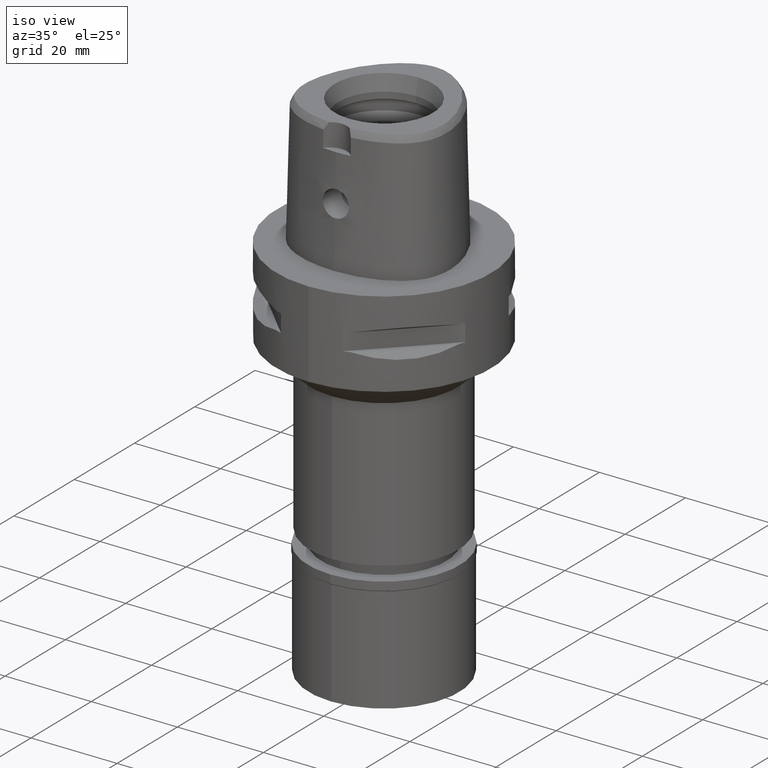
[diagram: clean part render]
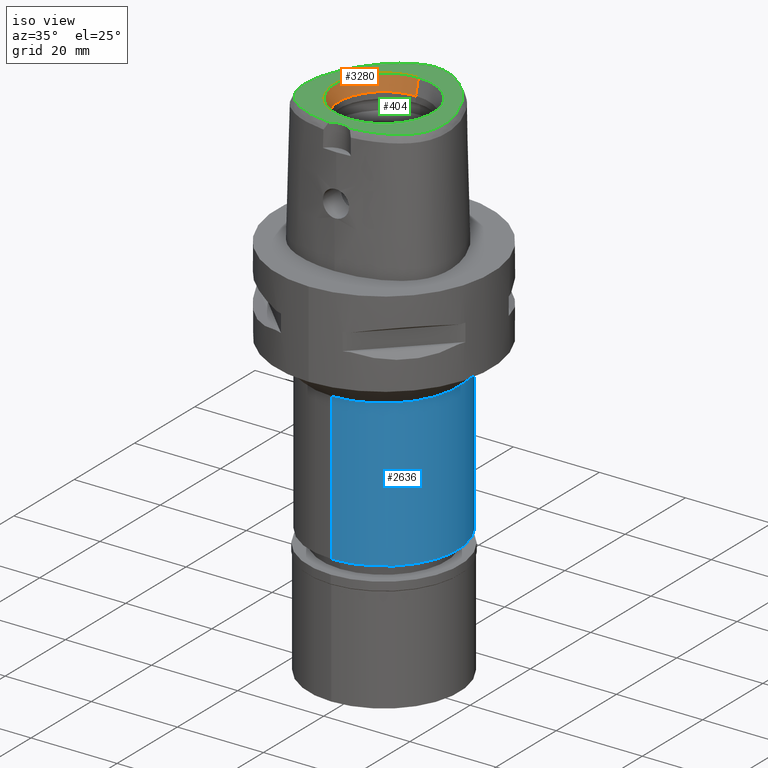
[diagram: same view with three faces highlighted in distinct colors, each labeled with its STEP entity id]
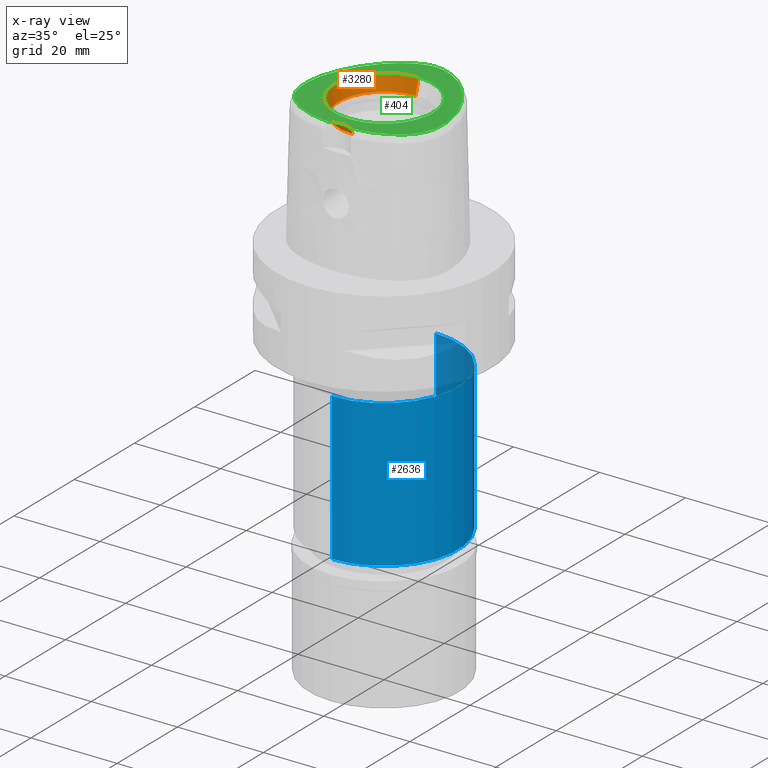
[diagram: x-ray of the same camera — body ghosted, the three highlighted faces saturated]
A machine part, iso view with three faces highlighted in distinct colors.
The next image is the same camera in x-ray (body ghosted, the three faces saturated) — at least one of them is partly hidden behind the body in this view.
Their STEP definitions:

[orange] entity #3280 — the highlighted conical surface has half-angle 15 deg.
#3 = DIRECTION ( 'NONE',  ( 0.0000000000000000000, 0.0000000000000000000, 1.000000000000000000 ) ) ;
#32 = EDGE_CURVE ( 'NONE', #1560, #2302, #457, .T. ) ;
#58 = CARTESIAN_POINT ( 'NONE',  ( 0.0000000000000000000, 10.50000000000000000, 26.50000000000000000 ) ) ;
#322 = CARTESIAN_POINT ( 'NONE',  ( 0.0000000000000000000, 10.50000000000000000, 26.50000000000000000 ) ) ;
#442 = FACE_OUTER_BOUND ( 'NONE', #2288, .T. ) ;
#457 = CIRCLE ( 'NONE', #1867, 10.50000000000000000 ) ;
#515 = EDGE_CURVE ( 'NONE', #3151, #2186, #3237, .T. ) ;
#681 = CARTESIAN_POINT ( 'NONE',  ( 0.0000000000000000000, 1.570609519905999910E-14, 30.00000000000000000 ) ) ;
#767 = ORIENTED_EDGE ( 'NONE', *, *, #3804, .T. ) ;
#1025 = VECTOR ( 'NONE', #3806, 1000.000000000000114 ) ;
#1035 = AXIS2_PLACEMENT_3D ( 'NONE', #1225, #2274, #3046 ) ;
#1143 = AXIS2_PLACEMENT_3D ( 'NONE', #681, #3319, #1464 ) ;
#1225 = CARTESIAN_POINT ( 'NONE',  ( 0.0000000000000000000, 1.570609519905999910E-14, 28.25000000000000000 ) ) ;
#1424 = VECTOR ( 'NONE', #2741, 1000.000000000000114 ) ;
#1464 = DIRECTION ( 'NONE',  ( 0.0000000000000000000, 1.000000000000000000, 0.0000000000000000000 ) ) ;
#1558 = LINE ( 'NONE', #1901, #1025 ) ;
#1560 = VERTEX_POINT ( 'NONE', #322 ) ;
#1579 = ORIENTED_EDGE ( 'NONE', *, *, #32, .F. ) ;
#1625 = LINE ( 'NONE', #58, #1424 ) ;
#1867 = AXIS2_PLACEMENT_3D ( 'NONE', #3330, #3, #4771 ) ;
#1901 = CARTESIAN_POINT ( 'NONE',  ( 0.0000000000000000000, -10.50000000000000000, 26.50000000000000000 ) ) ;
#2186 = VERTEX_POINT ( 'NONE', #4731 ) ;
#2274 = DIRECTION ( 'NONE',  ( 0.0000000000000000000, 0.0000000000000000000, 1.000000000000000000 ) ) ;
#2288 = EDGE_LOOP ( 'NONE', ( #4481, #1579, #767, #4672 ) ) ;
#2298 = EDGE_CURVE ( 'NONE', #2302, #2186, #1558, .T. ) ;
#2302 = VERTEX_POINT ( 'NONE', #3089 ) ;
#2741 = DIRECTION ( 'NONE',  ( 0.0000000000000000000, 0.2588190451023999472, 0.9659258262891006197 ) ) ;
#2998 = CARTESIAN_POINT ( 'NONE',  ( 0.0000000000000000000, 11.43782217350000074, 30.00000000000000000 ) ) ;
#3046 = DIRECTION ( 'NONE',  ( 0.0000000000000000000, 1.000000000000000000, 0.0000000000000000000 ) ) ;
#3089 = CARTESIAN_POINT ( 'NONE',  ( 0.0000000000000000000, -10.50000000000000000, 26.50000000000000000 ) ) ;
#3140 = CONICAL_SURFACE ( 'NONE', #1035, 10.96891108674999948, 0.2617993877991000029 ) ;
#3151 = VERTEX_POINT ( 'NONE', #2998 ) ;
#3237 = CIRCLE ( 'NONE', #1143, 11.43782217350000074 ) ;
#3280 = ADVANCED_FACE ( 'NONE', ( #442 ), #3140, .F. ) ;
#3319 = DIRECTION ( 'NONE',  ( 0.0000000000000000000, 0.0000000000000000000, 1.000000000000000000 ) ) ;
#3330 = CARTESIAN_POINT ( 'NONE',  ( 0.0000000000000000000, 1.570609519905999910E-14, 26.50000000000000000 ) ) ;
#3804 = EDGE_CURVE ( 'NONE', #1560, #3151, #1625, .T. ) ;
#3806 = DIRECTION ( 'NONE',  ( 0.0000000000000000000, -0.2588190451023999472, 0.9659258262891006197 ) ) ;
#4481 = ORIENTED_EDGE ( 'NONE', *, *, #2298, .F. ) ;
#4672 = ORIENTED_EDGE ( 'NONE', *, *, #515, .T. ) ;
#4731 = CARTESIAN_POINT ( 'NONE',  ( 0.0000000000000000000, -11.43782217350000074, 30.00000000000000000 ) ) ;
#4771 = DIRECTION ( 'NONE',  ( 0.0000000000000000000, 1.000000000000000000, 0.0000000000000000000 ) ) ;

[blue] entity #2636 — the highlighted cylindrical surface (partial cylindrical patch) has radius 17.25 mm, axis along (0, 0, -1).
#278 = DIRECTION ( 'NONE',  ( 0.0000000000000000000, 0.0000000000000000000, -1.000000000000000000 ) ) ;
#351 = CARTESIAN_POINT ( 'NONE',  ( 0.0000000000000000000, 1.273020347714000000E-14, -60.19999999999999574 ) ) ;
#366 = CARTESIAN_POINT ( 'NONE',  ( 0.0000000000000000000, 17.25000000000000000, -26.00000000000000000 ) ) ;
#413 = AXIS2_PLACEMENT_3D ( 'NONE', #351, #717, #3304 ) ;
#478 = EDGE_CURVE ( 'NONE', #629, #3655, #4103, .T. ) ;
#482 = VERTEX_POINT ( 'NONE', #2193 ) ;
#556 = LINE ( 'NONE', #4781, #3761 ) ;
#629 = VERTEX_POINT ( 'NONE', #366 ) ;
#703 = DIRECTION ( 'NONE',  ( 0.0000000000000000000, 1.000000000000000000, 0.0000000000000000000 ) ) ;
#717 = DIRECTION ( 'NONE',  ( 0.0000000000000000000, 0.0000000000000000000, 1.000000000000000000 ) ) ;
#725 = DIRECTION ( 'NONE',  ( 0.0000000000000000000, 0.0000000000000000000, -1.000000000000000000 ) ) ;
#880 = VECTOR ( 'NONE', #3751, 1000.000000000000000 ) ;
#1350 = CARTESIAN_POINT ( 'NONE',  ( 0.0000000000000000000, -17.25000000000000000, -60.19999999999999574 ) ) ;
#1399 = ORIENTED_EDGE ( 'NONE', *, *, #3611, .T. ) ;
#1729 = AXIS2_PLACEMENT_3D ( 'NONE', #4017, #278, #1770 ) ;
#1743 = FACE_OUTER_BOUND ( 'NONE', #2228, .T. ) ;
#1770 = DIRECTION ( 'NONE',  ( 0.0000000000000000000, -1.000000000000000000, 0.0000000000000000000 ) ) ;
#1999 = AXIS2_PLACEMENT_3D ( 'NONE', #2478, #2171, #703 ) ;
#2126 = EDGE_CURVE ( 'NONE', #3655, #3982, #556, .T. ) ;
#2171 = DIRECTION ( 'NONE',  ( 0.0000000000000000000, 0.0000000000000000000, -1.000000000000000000 ) ) ;
#2193 = CARTESIAN_POINT ( 'NONE',  ( 0.0000000000000000000, 17.25000000000000000, -60.19999999999999574 ) ) ;
#2228 = EDGE_LOOP ( 'NONE', ( #2866, #2632, #1399, #2962 ) ) ;
#2478 = CARTESIAN_POINT ( 'NONE',  ( 0.0000000000000000000, 0.0000000000000000000, -26.00000000000000000 ) ) ;
#2544 = CYLINDRICAL_SURFACE ( 'NONE', #1729, 17.25000000000000000 ) ;
#2573 = LINE ( 'NONE', #3675, #880 ) ;
#2632 = ORIENTED_EDGE ( 'NONE', *, *, #2126, .T. ) ;
#2636 = ADVANCED_FACE ( 'NONE', ( #1743 ), #2544, .T. ) ;
#2866 = ORIENTED_EDGE ( 'NONE', *, *, #478, .T. ) ;
#2962 = ORIENTED_EDGE ( 'NONE', *, *, #3336, .F. ) ;
#3304 = DIRECTION ( 'NONE',  ( 0.0000000000000000000, -1.000000000000000000, 0.0000000000000000000 ) ) ;
#3336 = EDGE_CURVE ( 'NONE', #629, #482, #2573, .T. ) ;
#3611 = EDGE_CURVE ( 'NONE', #3982, #482, #4470, .T. ) ;
#3655 = VERTEX_POINT ( 'NONE', #4753 ) ;
#3675 = CARTESIAN_POINT ( 'NONE',  ( 0.0000000000000000000, 17.25000000000000000, -26.00000000000000000 ) ) ;
#3751 = DIRECTION ( 'NONE',  ( 0.0000000000000000000, 0.0000000000000000000, -1.000000000000000000 ) ) ;
#3761 = VECTOR ( 'NONE', #725, 1000.000000000000000 ) ;
#3982 = VERTEX_POINT ( 'NONE', #1350 ) ;
#4017 = CARTESIAN_POINT ( 'NONE',  ( 0.0000000000000000000, 1.273020347714000000E-14, 3.950000000000000178 ) ) ;
#4103 = CIRCLE ( 'NONE', #1999, 17.25000000000000000 ) ;
#4470 = CIRCLE ( 'NONE', #413, 17.25000000000000000 ) ;
#4753 = CARTESIAN_POINT ( 'NONE',  ( 0.0000000000000000000, -17.25000000000000000, -26.00000000000000000 ) ) ;
#4781 = CARTESIAN_POINT ( 'NONE',  ( 0.0000000000000000000, -17.25000000000000000, -26.00000000000000000 ) ) ;

[green] entity #404 — the highlighted planar face has unit normal (0, 0, 1).
#66 = ORIENTED_EDGE ( 'NONE', *, *, #926, .F. ) ;
#87 = CARTESIAN_POINT ( 'NONE',  ( -6.301949014348001760E-11, 17.15328888647999861, 30.00000000000000000 ) ) ;
#152 = PLANE ( 'NONE',  #3708 ) ;
#187 = CARTESIAN_POINT ( 'NONE',  ( 16.04058509949058120, -1.654113685488318719, 30.00000000000085620 ) ) ;
#194 = FACE_BOUND ( 'NONE', #349, .T. ) ;
#210 = CARTESIAN_POINT ( 'NONE',  ( 0.1912597614439644211, 17.15328888648271644, 30.00000000000237321 ) ) ;
#230 = CARTESIAN_POINT ( 'NONE',  ( -6.301949014348001760E-11, 17.15328888647999861, 30.00000000000000000 ) ) ;
#255 = CARTESIAN_POINT ( 'NONE',  ( 15.51702143705950121, -7.148634146069219319, 30.00000000000020606 ) ) ;
#293 = CARTESIAN_POINT ( 'NONE',  ( -15.29229544369949778, -7.721097396978246152, 29.99999999999050715 ) ) ;
#304 = CARTESIAN_POINT ( 'NONE',  ( 15.71128456932016348, -6.534031654962926261, 30.00000000000222755 ) ) ;
#315 = ORIENTED_EDGE ( 'NONE', *, *, #1011, .F. ) ;
#316 = CARTESIAN_POINT ( 'NONE',  ( -8.556928701965192730, 13.07433695899091219, 29.99999999999191047 ) ) ;
#328 = CARTESIAN_POINT ( 'NONE',  ( 15.99982784346009801, -5.151471542954434213, 29.99999999999620215 ) ) ;
#343 = CARTESIAN_POINT ( 'NONE',  ( -5.257871200568519754, 15.58649213537267109, 29.99999999999856826 ) ) ;
#349 = EDGE_LOOP ( 'NONE', ( #2790, #1496 ) ) ;
#352 = CARTESIAN_POINT ( 'NONE',  ( 12.04928217776229360, -11.59002493206971529, 30.00000000000117950 ) ) ;
#369 = CARTESIAN_POINT ( 'NONE',  ( -7.776737509123836212, -13.71663015822261222, 30.00000000000126477 ) ) ;
#370 = CIRCLE ( 'NONE', #600, 4.000000000000000888 ) ;
#392 = CARTESIAN_POINT ( 'NONE',  ( -5.437876102061962591, -14.35707869331290354, 30.00000000000051514 ) ) ;
#404 = ADVANCED_FACE ( 'NONE', ( #3173, #194 ), #152, .T. ) ;
#515 = EDGE_CURVE ( 'NONE', #3151, #2186, #3237, .T. ) ;
#533 = CARTESIAN_POINT ( 'NONE',  ( 9.420872132874531957, 12.20574557692828144, 30.00000000000901679 ) ) ;
#600 = AXIS2_PLACEMENT_3D ( 'NONE', #3626, #1779, #3264 ) ;
#657 = CARTESIAN_POINT ( 'NONE',  ( -2.411640998825538951, 16.81591728051153112, 29.99999999999791811 ) ) ;
#658 = EDGE_CURVE ( 'NONE', #2186, #3151, #4333, .T. ) ;
#681 = CARTESIAN_POINT ( 'NONE',  ( 0.0000000000000000000, 1.570609519905999910E-14, 30.00000000000000000 ) ) ;
#683 = CARTESIAN_POINT ( 'NONE',  ( -15.71065119878979921, -6.536303815289553398, 29.99999999999173284 ) ) ;
#705 = CARTESIAN_POINT ( 'NONE',  ( -15.90223487643930511, -0.6162487013686411830, 29.99999999999145217 ) ) ;
#719 = CARTESIAN_POINT ( 'NONE',  ( 4.159771979224938576, -14.59766906204017367, 30.00000000000440181 ) ) ;
#727 = CARTESIAN_POINT ( 'NONE',  ( -2.406542353497000075, -14.80491723099000012, 30.00000000000000000 ) ) ;
#758 = CARTESIAN_POINT ( 'NONE',  ( -15.68979199461784191, 0.4896967076518167761, 29.99999999999021938 ) ) ;
#814 = VERTEX_POINT ( 'NONE', #727 ) ;
#896 = CARTESIAN_POINT ( 'NONE',  ( 6.863227115065288153, 14.51498137220169227, 29.99999999999951328 ) ) ;
#920 = CARTESIAN_POINT ( 'NONE',  ( 2.406543924163999648, -14.80491841401999942, 30.00000000000000000 ) ) ;
#921 = CARTESIAN_POINT ( 'NONE',  ( 15.68929135224404448, 0.4919393172822775218, 30.00000000000160938 ) ) ;
#926 = EDGE_CURVE ( 'NONE', #3443, #814, #370, .T. ) ;
#943 = CARTESIAN_POINT ( 'NONE',  ( 12.68590586676934429, 7.870511070825401134, 30.00000000000665423 ) ) ;
#1011 = EDGE_CURVE ( 'NONE', #814, #2257, #3547, .T. ) ;
#1021 = CARTESIAN_POINT ( 'NONE',  ( -1.160151454488347778, 17.07862209883642635, 29.99999999999358735 ) ) ;
#1036 = CARTESIAN_POINT ( 'NONE',  ( 14.08238499151983625, -9.704590128438637109, 29.99999999999494449 ) ) ;
#1050 = CARTESIAN_POINT ( 'NONE',  ( -12.65209017756237131, -11.12734424253345722, 29.99999999999469225 ) ) ;
#1061 = CARTESIAN_POINT ( 'NONE',  ( 15.29323375805280705, -7.718923543002861543, 29.99999999999899458 ) ) ;
#1078 = CARTESIAN_POINT ( 'NONE',  ( -0.1909045559980151185, 17.15328888648422279, 29.99999999999326761 ) ) ;
#1114 = CARTESIAN_POINT ( 'NONE',  ( 13.66559393374796016, -10.18115111194088840, 30.00000000000289901 ) ) ;
#1128 = CARTESIAN_POINT ( 'NONE',  ( -4.150496093830946087, -14.59917355179870135, 29.99999999999328182 ) ) ;
#1143 = AXIS2_PLACEMENT_3D ( 'NONE', #681, #3319, #1464 ) ;
#1150 = AXIS2_PLACEMENT_3D ( 'NONE', #2505, #2144, #4839 ) ;
#1288 = CARTESIAN_POINT ( 'NONE',  ( 11.92667412982003228, 9.061218325782263605, 29.99999999999640821 ) ) ;
#1320 = DIRECTION ( 'NONE',  ( 0.0000000000000000000, 0.0000000000000000000, 1.000000000000000000 ) ) ;
#1356 = CARTESIAN_POINT ( 'NONE',  ( 6.048015628559986645, 15.09357031580100106, 29.99999999999808864 ) ) ;
#1393 = CARTESIAN_POINT ( 'NONE',  ( -11.92713521269314292, 9.060544494663830051, 29.99999999999166889 ) ) ;
#1414 = CARTESIAN_POINT ( 'NONE',  ( -6.650243356161015917, -14.05992414833286652, 30.00000000000092726 ) ) ;
#1426 = CARTESIAN_POINT ( 'NONE',  ( 14.44767169633491122, -9.224476417585403709, 30.00000000000081712 ) ) ;
#1440 = CARTESIAN_POINT ( 'NONE',  ( -4.498660734198850264, 15.99814720005768365, 29.99999999999441513 ) ) ;
#1464 = DIRECTION ( 'NONE',  ( 0.0000000000000000000, 1.000000000000000000, 0.0000000000000000000 ) ) ;
#1466 = CARTESIAN_POINT ( 'NONE',  ( -15.02099409650710093, 2.867135356160721571, 29.99999999999479527 ) ) ;
#1490 = CARTESIAN_POINT ( 'NONE',  ( -15.99949242929181814, -5.153835065649202463, 29.99999999999747757 ) ) ;
#1496 = ORIENTED_EDGE ( 'NONE', *, *, #515, .F. ) ;
#1654 = CARTESIAN_POINT ( 'NONE',  ( 1.161482229273333555, 17.07843133414590753, 30.00000000000385469 ) ) ;
#1698 = CARTESIAN_POINT ( 'NONE',  ( 3.078265684544093883, 16.60532678263368211, 30.00000000000010658 ) ) ;
#1719 = CARTESIAN_POINT ( 'NONE',  ( 1.774127352511049693, 16.97169788999240936, 29.99999999999882405 ) ) ;
#1779 = DIRECTION ( 'NONE',  ( 0.0000000000000000000, 0.0000000000000000000, 1.000000000000000000 ) ) ;
#1784 = CARTESIAN_POINT ( 'NONE',  ( -3.077178008231669981, 16.60571267458579570, 30.00000000000154543 ) ) ;
#1796 = CARTESIAN_POINT ( 'NONE',  ( 16.11273027396866908, -2.627494158580902184, 30.00000000000405009 ) ) ;
#1807 = CARTESIAN_POINT ( 'NONE',  ( -14.08052509618731740, -9.706873108418973217, 29.99999999999241496 ) ) ;
#1832 = CARTESIAN_POINT ( 'NONE',  ( -10.60021164903102076, -12.49731984708874677, 29.99999999998902211 ) ) ;
#1879 = EDGE_LOOP ( 'NONE', ( #4355, #315, #66 ) ) ;
#2004 = CARTESIAN_POINT ( 'NONE',  ( -13.66338899148893482, -10.18351204679058952, 29.99999999999040057 ) ) ;
#2023 = CARTESIAN_POINT ( 'NONE',  ( 11.11868440496507127, 10.19157821279967635, 29.99999999999838352 ) ) ;
#2107 = CARTESIAN_POINT ( 'NONE',  ( 16.12546998862792691, -3.533461825553398050, 30.00000000000384048 ) ) ;
#2144 = DIRECTION ( 'NONE',  ( 0.0000000000000000000, 0.0000000000000000000, 1.000000000000000000 ) ) ;
#2161 = CARTESIAN_POINT ( 'NONE',  ( 12.65514534657001811, -11.12483370674133631, 30.00000000000831690 ) ) ;
#2173 = CARTESIAN_POINT ( 'NONE',  ( -15.39727819200965442, 1.655076005306153286, 29.99999999999458211 ) ) ;
#2186 = VERTEX_POINT ( 'NONE', #4731 ) ;
#2195 = CARTESIAN_POINT ( 'NONE',  ( -14.44611813752698914, -9.226676124713099725, 29.99999999999290878 ) ) ;
#2221 = CARTESIAN_POINT ( 'NONE',  ( -3.123276563985051268, -14.73562494724608918, 29.99999999999736389 ) ) ;
#2251 = CARTESIAN_POINT ( 'NONE',  ( -13.38439869301438279, 6.635703175840472312, 29.99999999999366196 ) ) ;
#2257 = VERTEX_POINT ( 'NONE', #87 ) ;
#2381 = CARTESIAN_POINT ( 'NONE',  ( 8.557117433366570936, 13.07415149353017192, 30.00000000000586908 ) ) ;
#2405 = CARTESIAN_POINT ( 'NONE',  ( 15.90185233182095637, -0.6139199331564265671, 29.99999999999401012 ) ) ;
#2491 = CARTESIAN_POINT ( 'NONE',  ( 7.783816186093539535, -13.71424622167470275, 30.00000000000410694 ) ) ;
#2505 = CARTESIAN_POINT ( 'NONE',  ( 0.0000000000000000000, 1.570609519905999910E-14, 30.00000000000000000 ) ) ;
#2517 = CARTESIAN_POINT ( 'NONE',  ( 2.538962679605490713, -14.79292722369703483, 30.00000000000314415 ) ) ;
#2559 = CARTESIAN_POINT ( 'NONE',  ( -12.04571048959994428, -11.59259605426995066, 29.99999999999912959 ) ) ;
#2583 = CARTESIAN_POINT ( 'NONE',  ( -16.04083576398203093, -1.656498942828826593, 29.99999999999334577 ) ) ;
#2609 = CARTESIAN_POINT ( 'NONE',  ( -16.12543283908805947, -3.535877041748210825, 29.99999999999578648 ) ) ;
#2629 = EDGE_CURVE ( 'NONE', #2257, #3443, #4578, .T. ) ;
#2772 = CARTESIAN_POINT ( 'NONE',  ( 14.01089202938320177, 5.377385268371323690, 29.99999999999874944 ) ) ;
#2790 = ORIENTED_EDGE ( 'NONE', *, *, #658, .F. ) ;
#2798 = CARTESIAN_POINT ( 'NONE',  ( 2.412811123805030711, 16.81558681049622095, 30.00000000001035261 ) ) ;
#2816 = CARTESIAN_POINT ( 'NONE',  ( 13.38374903490457868, 6.636915464740367199, 30.00000000000144595 ) ) ;
#2864 = CARTESIAN_POINT ( 'NONE',  ( 6.658132732488903471, -14.05774790738833246, 30.00000000000050804 ) ) ;
#2876 = CARTESIAN_POINT ( 'NONE',  ( -9.420854217684988541, 12.20577134110055084, 29.99999999999278444 ) ) ;
#2886 = CARTESIAN_POINT ( 'NONE',  ( 13.19176257967434296, -10.65479018522902344, 30.00000000000186162 ) ) ;
#2900 = CARTESIAN_POINT ( 'NONE',  ( -13.18915979441912611, -10.65722997876653366, 29.99999999999973355 ) ) ;
#2910 = CARTESIAN_POINT ( 'NONE',  ( 10.60500548643913277, -12.49469941439694942, 29.99999999999682387 ) ) ;
#2923 = CARTESIAN_POINT ( 'NONE',  ( -1.772880577022327930, 16.97196055715874508, 29.99999999999037925 ) ) ;
#2948 = CARTESIAN_POINT ( 'NONE',  ( -6.047371482395870856, 15.09400374235432984, 29.99999999999527489 ) ) ;
#2973 = CARTESIAN_POINT ( 'NONE',  ( -16.08550869467104150, -4.376322360226318153, 29.99999999999761968 ) ) ;
#2998 = CARTESIAN_POINT ( 'NONE',  ( 0.0000000000000000000, 11.43782217350000074, 30.00000000000000000 ) ) ;
#3138 = CARTESIAN_POINT ( 'NONE',  ( 10.27891984617770760, 11.24296481357374233, 29.99999999999593214 ) ) ;
#3151 = VERTEX_POINT ( 'NONE', #2998 ) ;
#3173 = FACE_OUTER_BOUND ( 'NONE', #1879, .T. ) ;
#3184 = CARTESIAN_POINT ( 'NONE',  ( 5.258649622039221150, 15.58603480842658584, 29.99999999999832312 ) ) ;
#3203 = CARTESIAN_POINT ( 'NONE',  ( 3.772905803807994563, 16.33508552418809501, 30.00000000000224887 ) ) ;
#3237 = CIRCLE ( 'NONE', #1143, 11.43782217350000074 ) ;
#3244 = CARTESIAN_POINT ( 'NONE',  ( -11.36350786441620464, -12.05063008428570726, 29.99999999999460343 ) ) ;
#3258 = CARTESIAN_POINT ( 'NONE',  ( 9.755668685252768313, -12.92551394022695277, 29.99999999999736389 ) ) ;
#3264 = DIRECTION ( 'NONE',  ( 0.6016359810410799591, 0.7987703964949736113, 0.0000000000000000000 ) ) ;
#3269 = CARTESIAN_POINT ( 'NONE',  ( -15.51623783591088745, -7.150856098906382741, 29.99999999999112532 ) ) ;
#3279 = CARTESIAN_POINT ( 'NONE',  ( 16.08569500455265811, -4.373922630229452047, 30.00000000000476774 ) ) ;
#3295 = CARTESIAN_POINT ( 'NONE',  ( -14.01158736112962266, 5.375902008632034601, 29.99999999998960476 ) ) ;
#3319 = DIRECTION ( 'NONE',  ( 0.0000000000000000000, 0.0000000000000000000, 1.000000000000000000 ) ) ;
#3321 = CARTESIAN_POINT ( 'NONE',  ( -15.87300767660360101, -5.872112237378848576, 29.99999999999317524 ) ) ;
#3351 = CARTESIAN_POINT ( 'NONE',  ( -2.535517866335801340, -14.79323888261518860, 29.99999999999759837 ) ) ;
#3443 = VERTEX_POINT ( 'NONE', #920 ) ;
#3547 = B_SPLINE_CURVE_WITH_KNOTS ( 'NONE', 3,
 ( #3633, #3351, #2221, #1128, #392, #1414, #369, #4006, #4107, #1832, #3244, #2559, #1050, #2900, #2004, #1807, #2195, #4399, #4033, #293, #3269, #683, #3321, #1490, #2973, #2609, #4816, #2583, #705, #758, #2173, #1466, #3662, #3295, #2251, #3689, #1393, #4058, #4741, #2876, #316, #4789, #4372, #2948, #343, #1440, #4082, #1784, #657, #2923, #1021, #4423, #1078, #4447 ),
 .UNSPECIFIED., .F., .F.,
 ( 4, 1, 1, 1, 1, 1, 1, 1, 1, 1, 1, 1, 1, 1, 1, 1, 1, 1, 1, 1, 1, 1, 1, 1, 1, 1, 1, 1, 1, 1, 1, 1, 1, 1, 1, 1, 1, 1, 1, 1, 1, 1, 1, 1, 1, 1, 1, 1, 1, 1, 1, 4 ),
 ( 0.0000000000000000000, 0.005566907331700066131, 0.02545556918509994659, 0.04534423103860008020, 0.06523289289190004059, 0.08512155474529992105, 0.1050102165987000236, 0.1248988784521999351, 0.1447875403055000065, 0.1646762021588999980, 0.1845648640122999895, 0.2044535258655999499, 0.2243421877191000835, 0.2442308495724999640, 0.2641195114257999244, 0.2840081732792000269, 0.3038968351325999073, 0.3237854969860000098, 0.3436741588394000013, 0.3635628206927999928, 0.3834514825461999843, 0.4033401443995000557, 0.4232288062529999673, 0.4431174681064000698, 0.4630061299597000302, 0.4828947918130999106, 0.5027834536666000442, 0.5226721155199000046, 0.5425607773732999961, 0.5624494392267000986, 0.5823381010799999480, 0.6022267629334999706, 0.6221154247869000731, 0.6420040866403000646, 0.6618927484936000250, 0.6817814103470000164, 0.7016700722005000390, 0.7215587340537999994, 0.7414473959071999909, 0.7613360577605999824, 0.7812247196139999739, 0.8011133814673999654, 0.8210020433207999568, 0.8408907051741000283, 0.8607793670275000197, 0.8806680288810000423, 0.9005566907343299787, 0.9204453525877199782, 0.9403340144411099777, 0.9602226762944999772, 0.9801113381478899766, 1.000000000000000000 ),
 .UNSPECIFIED. ) ;
#3566 = DIRECTION ( 'NONE',  ( 1.000000000000000000, 0.0000000000000000000, 0.0000000000000000000 ) ) ;
#3626 = CARTESIAN_POINT ( 'NONE',  ( 0.0000000000000000000, -18.00000000000000000, 30.00000000000000000 ) ) ;
#3633 = CARTESIAN_POINT ( 'NONE',  ( -2.406542353497000075, -14.80491723099000012, 30.00000000000000000 ) ) ;
#3649 = CARTESIAN_POINT ( 'NONE',  ( 3.130495111450264378, -14.73481892792070802, 30.00000000000454037 ) ) ;
#3662 = CARTESIAN_POINT ( 'NONE',  ( -14.55898035934006174, 4.112421202110740026, 29.99999999999312195 ) ) ;
#3689 = CARTESIAN_POINT ( 'NONE',  ( -12.68647747557326610, 7.869569494475703308, 29.99999999999079492 ) ) ;
#3698 = CARTESIAN_POINT ( 'NONE',  ( 15.04259016984203967, -8.247723288183140156, 30.00000000000793676 ) ) ;
#3708 = AXIS2_PLACEMENT_3D ( 'NONE', #4712, #1320, #3566 ) ;
#3880 = CARTESIAN_POINT ( 'NONE',  ( 7.700998872106104898, 13.84384558891525430, 30.00000000000163070 ) ) ;
#3902 = CARTESIAN_POINT ( 'NONE',  ( 15.39668103801844801, 1.657188505494414432, 29.99999999999945288 ) ) ;
#3994 = CARTESIAN_POINT ( 'NONE',  ( 2.406543924163999648, -14.80491841401999942, 30.00000000000000000 ) ) ;
#4006 = CARTESIAN_POINT ( 'NONE',  ( -8.809985523416255404, -13.33678107331300389, 29.99999999999901945 ) ) ;
#4033 = CARTESIAN_POINT ( 'NONE',  ( -15.04149970408036552, -8.249836848501304942, 29.99999999999439027 ) ) ;
#4046 = CARTESIAN_POINT ( 'NONE',  ( 11.36765809995314669, -12.04801986072811282, 30.00000000000017053 ) ) ;
#4058 = CARTESIAN_POINT ( 'NONE',  ( -11.11900396222386789, 10.19116357425766139, 29.99999999999430855 ) ) ;
#4082 = CARTESIAN_POINT ( 'NONE',  ( -3.771910472265290526, 16.33551310926200628, 29.99999999999392131 ) ) ;
#4107 = CARTESIAN_POINT ( 'NONE',  ( -9.750168658359493534, -12.92810664734379955, 29.99999999999522515 ) ) ;
#4246 = CARTESIAN_POINT ( 'NONE',  ( 4.499552315896398369, 15.99769543814656991, 30.00000000000481037 ) ) ;
#4269 = CARTESIAN_POINT ( 'NONE',  ( 15.02033012162003800, 2.869071121501743704, 30.00000000000778400 ) ) ;
#4333 = CIRCLE ( 'NONE', #1150, 11.43782217350000074 ) ;
#4355 = ORIENTED_EDGE ( 'NONE', *, *, #2629, .F. ) ;
#4372 = CARTESIAN_POINT ( 'NONE',  ( -6.862723739080936802, 14.51536572209183795, 30.00000000000070699 ) ) ;
#4399 = CARTESIAN_POINT ( 'NONE',  ( -14.76322153899637435, -8.744676018999323119, 29.99999999999144862 ) ) ;
#4410 = CARTESIAN_POINT ( 'NONE',  ( 5.446614459517136630, -14.35518554872843744, 30.00000000000071054 ) ) ;
#4423 = CARTESIAN_POINT ( 'NONE',  ( -0.5679008307150079649, 17.14013367087627415, 29.99999999999271694 ) ) ;
#4447 = CARTESIAN_POINT ( 'NONE',  ( -6.301949014348001760E-11, 17.15328888647999861, 30.00000000000000000 ) ) ;
#4578 = B_SPLINE_CURVE_WITH_KNOTS ( 'NONE', 3,
 ( #230, #210, #4706, #1654, #1719, #2798, #1698, #3203, #4246, #3184, #1356, #896, #3880, #2381, #533, #3138, #2023, #1288, #943, #2816, #2772, #4679, #4269, #3902, #921, #2405, #187, #1796, #2107, #3279, #328, #4776, #304, #255, #1061, #3698, #4754, #1426, #1036, #1114, #2886, #2161, #352, #4046, #2910, #3258, #4800, #2491, #2864, #4410, #719, #3649, #2517, #3994 ),
 .UNSPECIFIED., .F., .F.,
 ( 4, 1, 1, 1, 1, 1, 1, 1, 1, 1, 1, 1, 1, 1, 1, 1, 1, 1, 1, 1, 1, 1, 1, 1, 1, 1, 1, 1, 1, 1, 1, 1, 1, 1, 1, 1, 1, 1, 1, 1, 1, 1, 1, 1, 1, 1, 1, 1, 1, 1, 1, 4 ),
 ( 0.0000000000000000000, 0.01988587058640001182, 0.03977174117009996124, 0.05965761175399997285, 0.07954348233780006439, 0.09942935292160004490, 0.1193152235055000565, 0.1392010940893000370, 0.1590869646731999376, 0.1789728352568999981, 0.1988587058408000097, 0.2187445764247000213, 0.2386304470083999707, 0.2585163175922999823, 0.2784021881761000738, 0.2982880587598999433, 0.3181739293438000660, 0.3380597999276000465, 0.3579456705113999160, 0.3778315410952000075, 0.3977174116791000191, 0.4176032822630000307, 0.4374891528466999802, 0.4573750234305999918, 0.4772608940143999723, 0.4971467645981999528, 0.5170326351820999644, 0.5369185057659000559, 0.5568043763497000365, 0.5766902469335999371, 0.5965761175174000286, 0.6164619881012000091, 0.6363478586849999896, 0.6562337292689000012, 0.6761195998528000128, 0.6960054704364999623, 0.7158913410203999739, 0.7357772116042000654, 0.7556630821880000459, 0.7755489527718999465, 0.7954348233557000381, 0.8153206939395000186, 0.8352065645232999991, 0.8550924351072000107, 0.8749783056909999912, 0.8948641762747999717, 0.9147500468586799993, 0.9346359174424899718, 0.9545217880263200394, 0.9744076586101599879, 0.9942935291939859477, 1.000000000000000000 ),
 .UNSPECIFIED. ) ;
#4679 = CARTESIAN_POINT ( 'NONE',  ( 14.55828366953440955, 4.114142377745902301, 30.00000000000360956 ) ) ;
#4706 = CARTESIAN_POINT ( 'NONE',  ( 0.5691917915716335763, 17.14006060249169394, 30.00000000000265388 ) ) ;
#4712 = CARTESIAN_POINT ( 'NONE',  ( 0.0000000000000000000, 0.0000000000000000000, 30.00000000000000000 ) ) ;
#4731 = CARTESIAN_POINT ( 'NONE',  ( 0.0000000000000000000, -11.43782217350000074, 30.00000000000000000 ) ) ;
#4741 = CARTESIAN_POINT ( 'NONE',  ( -10.27907733181907979, 11.24278573582803631, 29.99999999998773603 ) ) ;
#4754 = CARTESIAN_POINT ( 'NONE',  ( 14.76450668990745818, -8.742560395149599373, 30.00000000000570921 ) ) ;
#4776 = CARTESIAN_POINT ( 'NONE',  ( 15.87349190488068018, -5.869792298897719363, 29.99999999999613109 ) ) ;
#4789 = CARTESIAN_POINT ( 'NONE',  ( -7.700642921101384708, 13.84415306341761109, 29.99999999999959499 ) ) ;
#4800 = CARTESIAN_POINT ( 'NONE',  ( 8.816245487877097275, -13.33426548781521603, 30.00000000000641620 ) ) ;
#4816 = CARTESIAN_POINT ( 'NONE',  ( -16.11283982316346197, -2.629907404753487832, 29.99999999999553779 ) ) ;
#4839 = DIRECTION ( 'NONE',  ( 0.0000000000000000000, -1.000000000000000000, 0.0000000000000000000 ) ) ;